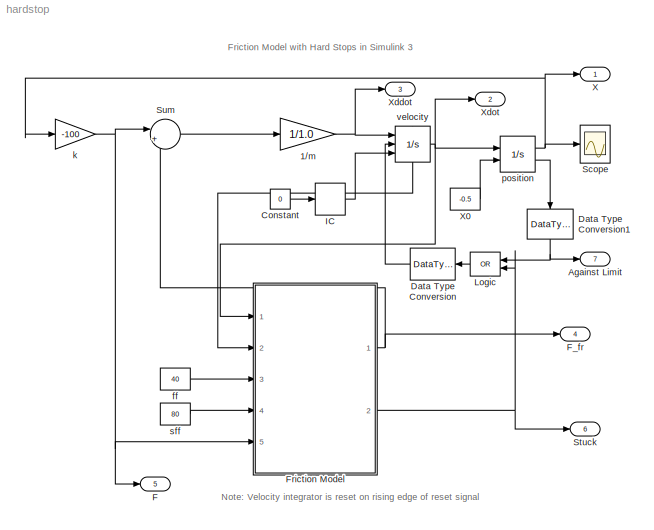
MODEL hardstop
KIND model
BLOCK [Gain] 1//m
  Gain = 1/1.0
BLOCK [Outport] Against Limit
  IconDisplay = Port number
  InitialOutput = 0
  Port = 7
BLOCK [Constant] Constant
  Value = 0
BLOCK [DataTypeConversion] Data Type Conversion
  OutDataTypeMode = double
BLOCK [DataTypeConversion] Data Type Conversion1
  OutDataTypeMode = boolean
BLOCK [Outport] F
  IconDisplay = Port number
  InitialOutput = 0
  Port = 5
BLOCK [Outport] F_fr
  IconDisplay = Port number
  InitialOutput = 0
  Port = 4
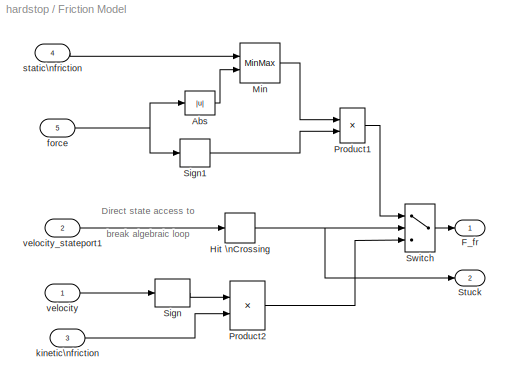
BLOCK [SubSystem] Friction Model
  MinAlgLoopOccurrences = off
  Ports = [5, 2]
  PropExecContextAcrossSSBoundary = on
  RTWSystemCode = Auto
  TreatAsAtomicUnit = off
BLOCK [Abs] Friction Model/Abs
BLOCK [Outport] Friction Model/F_fr
  IconDisplay = Port number
  InitialOutput = 0
BLOCK [HitCross] Friction Model/Hit \nCrossing
  HitCrossingDirection = either
  Ports = [1, 1]
BLOCK [MinMax] Friction Model/Min
  Function = min
  Inputs = 2
  Ports = [2, 1]
BLOCK [Product] Friction Model/Product1
  Ports = [2, 1]
  RndMeth = Floor
BLOCK [Product] Friction Model/Product2
  Ports = [2, 1]
  RndMeth = Floor
BLOCK [Signum] Friction Model/Sign
BLOCK [Signum] Friction Model/Sign1
BLOCK [Outport] Friction Model/Stuck
  IconDisplay = Port number
  InitialOutput = 0
  Port = 2
BLOCK [Switch] Friction Model/Switch
  Threshold = 0.5
BLOCK [Inport] Friction Model/force
  IconDisplay = Port number
  LatchInput = off
  Port = 5
BLOCK [Inport] Friction Model/kinetic\nfriction
  IconDisplay = Port number
  LatchInput = off
  Port = 3
BLOCK [Inport] Friction Model/static\nfriction
  IconDisplay = Port number
  LatchInput = off
  Port = 4
BLOCK [Inport] Friction Model/velocity
  IconDisplay = Port number
  LatchInput = off
  Port = 1
BLOCK [Inport] Friction Model/velocity_stateport1
  IconDisplay = Port number
  LatchInput = off
  Port = 2
BLOCK [InitialCondition] IC
  Value = 100
BLOCK [Logic] Logic
  Operator = OR
  Ports = [2, 1]
BLOCK [Scope] Scope
  DataFormat = Array
  NumInputPorts = 1
  Ports = [1]
  TickLabels = on
  YMax = 6
  YMin = -4
BLOCK [Outport] Stuck
  IconDisplay = Port number
  InitialOutput = 0
  Port = 6
BLOCK [Sum] Sum
  IconShape = round
  Inputs = |+-
  Ports = [2, 1]
BLOCK [Outport] X
  IconDisplay = Port number
  InitialOutput = 0
BLOCK [Constant] X0
  Value = -0.5
BLOCK [Outport] Xddot
  IconDisplay = Port number
  InitialOutput = 0
  Port = 3
BLOCK [Outport] Xdot
  IconDisplay = Port number
  InitialOutput = 0
  Port = 2
BLOCK [Constant] ff
  Value = 40
BLOCK [Gain] k
  Gain = -100
BLOCK [Integrator] position
  InitialConditionSource = external
  LimitOutput = on
  LowerSaturationLimit = -3.5
  Ports = [2, 2]
  ShowSaturationPort = on
  UpperSaturationLimit = 5.5
BLOCK [Constant] sff
  Value = 80
BLOCK [Integrator] velocity
  ExternalReset = rising
  InitialConditionSource = external
  Ports = [3, 1, 0, 0, 1]
  ShowStatePort = on
ANNOTATION (root): Friction Model with Hard Stops in Simulink 3
ANNOTATION (root): Note: Velocity integrator is reset on rising edge of reset signal
ANNOTATION Friction Model: Direct state access to\nbreak algebraic loop
NET 1//m:1 -> Xddot:1, velocity:1
LINE Constant:1 -> IC:1
NET Data Type Conversion1:1 -> Against Limit:1, Logic:1
LINE Data Type Conversion:1 -> velocity:2
LINE Friction Model/Abs:1 -> Friction Model/Min:2
NET Friction Model/Hit \nCrossing:1 -> Friction Model/Stuck:1, Friction Model/Switch:2
LINE Friction Model/Min:1 -> Friction Model/Product1:1
LINE Friction Model/Product1:1 -> Friction Model/Switch:1
LINE Friction Model/Product2:1 -> Friction Model/Switch:3
LINE Friction Model/Sign1:1 -> Friction Model/Product1:2
LINE Friction Model/Sign:1 -> Friction Model/Product2:1
LINE Friction Model/Switch:1 -> Friction Model/F_fr:1
NET Friction Model/force:1 -> Friction Model/Abs:1, Friction Model/Sign1:1
LINE Friction Model/kinetic\nfriction:1 -> Friction Model/Product2:2
LINE Friction Model/static\nfriction:1 -> Friction Model/Min:1
LINE Friction Model/velocity:1 -> Friction Model/Sign:1
LINE Friction Model/velocity_stateport1:1 -> Friction Model/Hit \nCrossing:1
NET Friction Model:1 -> F_fr:1, Sum:2
NET Friction Model:2 -> Logic:2, Stuck:1
LINE IC:1 -> velocity:3
LINE Logic:1 -> Data Type Conversion:1
LINE Sum:1 -> 1//m:1
LINE X0:1 -> position:2
LINE ff:1 -> Friction Model:3
NET k:1 -> F:1, Friction Model:5, Sum:1
NET position:1 -> Scope:1, X:1, k:1
LINE position:2 -> Data Type Conversion1:1
LINE sff:1 -> Friction Model:4
NET velocity:1 -> Friction Model:1, Xdot:1, position:1
LINE velocity:state -> Friction Model:2
note: NET lines group one-source signal fan-out (src -> all destinations, sorted); 1:1 wires keep LINE
